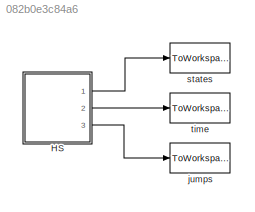
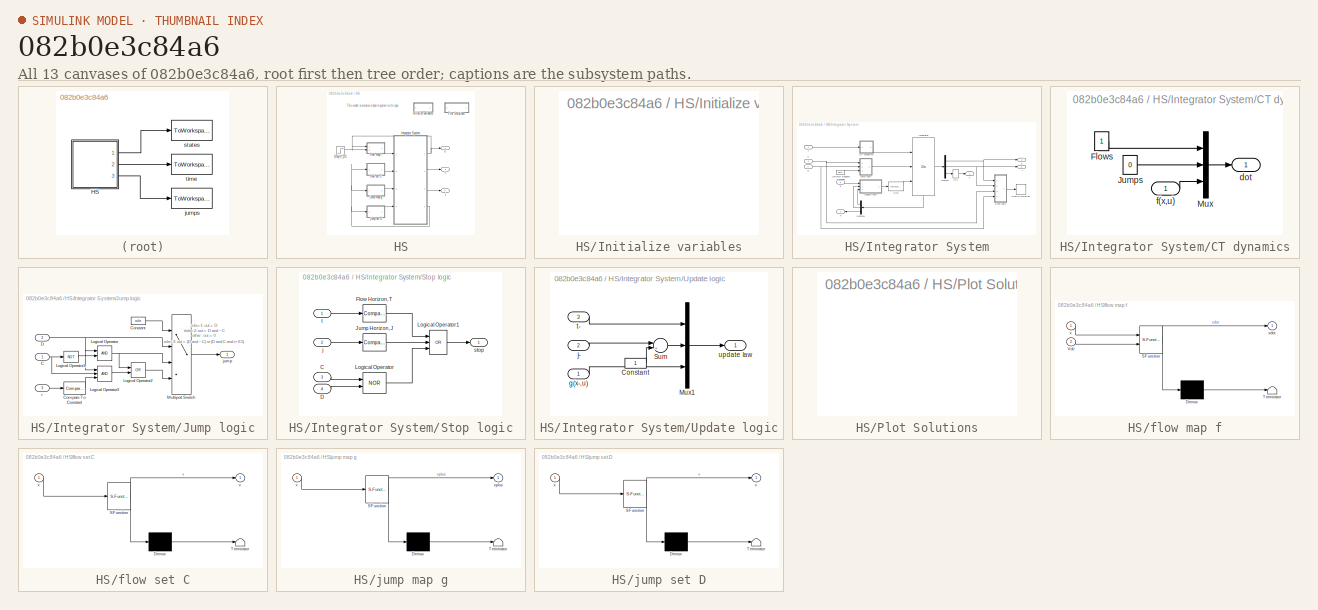
[diagram: thumbnail index - all 13 canvases of the model, root first then tree order]
MODEL slx_082b0e3c84a6
KIND model
BLOCK [SubSystem] HS
  CopyFcn = set_param(gcb,'LinkStatus','none'),                                      \nset_param(gcs, 'MaxStep', 'MaxStep', 'RelTol', 'RelTol','Stop time', 'T')
  FunctionWithSeparateData = off
  LoadFcn = set_param(gcb,'LinkStatus','none')
  MaskHideContents = off
  MinAlgLoopOccurrences = off
  Opaque = off
  Ports = [0, 3]
  PropExecContextOutsideSubsystem = off
  RTWSystemCode = Auto
  RequestExecContextInheritance = off
BLOCK [SubSystem] HS/Initialize variables
  FunctionWithSeparateData = off
  MaskHideContents = off
  MinAlgLoopOccurrences = off
  Opaque = off
  OpenFcn = try                                                            \n     clearvars -except inifile pathfile_in pathfile_pos posfile\n     cd(pathfile_in);                                          \n     eval(inifile);                                            \ncatch                                                          \n     [inifile,pathfile_in] = getInitializationfile;            \n     cd(pathfile...<+179ch>
  Ports = []
  Priority = -10
  PropExecContextOutsideSubsystem = off
  RTWSystemCode = Auto
  RequestExecContextInheritance = off
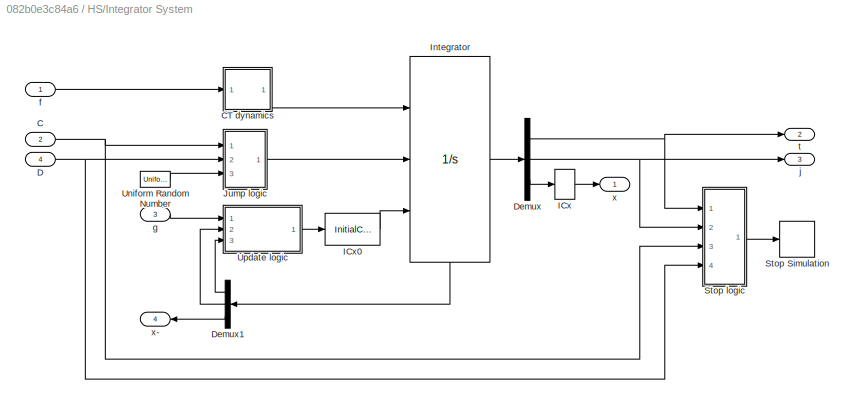
BLOCK [SubSystem] HS/Integrator System
  FunctionWithSeparateData = off
  MaskHideContents = off
  MinAlgLoopOccurrences = off
  Opaque = off
  Ports = [4, 4]
  Priority = 2
  PropExecContextOutsideSubsystem = off
  RTWSystemCode = Auto
  RequestExecContextInheritance = off
BLOCK [Inport] HS/Integrator System/C
  IconDisplay = Port number
  Port = 2
BLOCK [SubSystem] HS/Integrator System/CT dynamics
  FunctionWithSeparateData = off
  MaskHideContents = off
  MinAlgLoopOccurrences = off
  Opaque = off
  Ports = [1, 1]
  PropExecContextOutsideSubsystem = off
  RTWSystemCode = Auto
  RequestExecContextInheritance = off
BLOCK [Constant] HS/Integrator System/CT dynamics/Flows
BLOCK [Constant] HS/Integrator System/CT dynamics/Jumps
  Value = 0
BLOCK [Mux] HS/Integrator System/CT dynamics/Mux
  DisplayOption = bar
  Inputs = [1 1 -1]
  Ports = [3, 1]
BLOCK [Outport] HS/Integrator System/CT dynamics/dot
  IconDisplay = Port number
BLOCK [Inport] HS/Integrator System/CT dynamics/f(x,u)
  IconDisplay = Port number
BLOCK [Inport] HS/Integrator System/D
  IconDisplay = Port number
  Port = 4
BLOCK [Demux] HS/Integrator System/Demux
  DisplayOption = bar
  Outputs = [1 1 -1]
  Ports = [1, 3]
BLOCK [Demux] HS/Integrator System/Demux1
  DisplayOption = bar
  Outputs = [1 1 -1]
  Ports = [1, 3]
BLOCK [InitialCondition] HS/Integrator System/ICx
  Value = x0
BLOCK [InitialCondition] HS/Integrator System/ICx0
  Value = [0; 0; x0(:)]
BLOCK [Integrator] HS/Integrator System/Integrator
  ExternalReset = level hold
  InitialConditionSource = external
  Ports = [3, 1, 0, 0, 1]
  ShowStatePort = on
  ZeroCross = off
BLOCK [SubSystem] HS/Integrator System/Jump logic
  FunctionWithSeparateData = off
  MaskHideContents = off
  MinAlgLoopOccurrences = off
  Opaque = off
  Ports = [3, 1]
  PropExecContextOutsideSubsystem = off
  RTWSystemCode = Auto
  RequestExecContextInheritance = off
BLOCK [Inport] HS/Integrator System/Jump logic/C
  IconDisplay = Port number
BLOCK [Reference] HS/Integrator System/Jump logic/Compare To Constant  REF=simulink/Logic and Bit
Operations/Compare
To Constant
  OutDataTypeStr = uint8
  Ports = [1, 1]
  SourceBlock = simulink/Logic and Bit\nOperations/Compare\nTo Constant
  SourceType = Compare To Constant
  ZeroCross = on
  const = 0.5
  relop = >=
BLOCK [Constant] HS/Integrator System/Jump logic/Constant
  Value = rule
BLOCK [Inport] HS/Integrator System/Jump logic/D
  IconDisplay = Port number
  Port = 2
BLOCK [Logic] HS/Integrator System/Jump logic/Logical Operator
  AllPortsSameDT = off
  OutDataTypeStr = boolean
  Ports = [2, 1]
BLOCK [Logic] HS/Integrator System/Jump logic/Logical Operator1
  AllPortsSameDT = off
  Inputs = 1
  Operator = NOT
  OutDataTypeStr = boolean
  Ports = [1, 1]
BLOCK [Logic] HS/Integrator System/Jump logic/Logical Operator2
  AllPortsSameDT = off
  Operator = OR
  OutDataTypeStr = boolean
  Ports = [2, 1]
BLOCK [Logic] HS/Integrator System/Jump logic/Logical Operator3
  AllPortsSameDT = off
  Inputs = 3
  OutDataTypeStr = boolean
  Ports = [3, 1]
BLOCK [MultiPortSwitch] HS/Integrator System/Jump logic/Multiport Switch
  InputSameDT = off
  Ports = [4, 1]
  SaturateOnIntegerOverflow = off
BLOCK [Outport] HS/Integrator System/Jump logic/jump
  IconDisplay = Port number
BLOCK [Inport] HS/Integrator System/Jump logic/r
  IconDisplay = Port number
  Port = 3
BLOCK [Stop] HS/Integrator System/Stop Simulation
BLOCK [SubSystem] HS/Integrator System/Stop logic
  FunctionWithSeparateData = off
  MaskHideContents = off
  MinAlgLoopOccurrences = off
  Opaque = off
  Ports = [4, 1]
  PropExecContextOutsideSubsystem = off
  RTWSystemCode = Auto
  RequestExecContextInheritance = off
BLOCK [Inport] HS/Integrator System/Stop logic/C
  IconDisplay = Port number
  Port = 3
BLOCK [Inport] HS/Integrator System/Stop logic/D
  IconDisplay = Port number
  Port = 4
BLOCK [Reference] HS/Integrator System/Stop logic/Flow Horizon, T  REF=simulink/Logic and Bit
Operations/Compare
To Constant
  OutDataTypeStr = uint8
  Ports = [1, 1]
  SourceBlock = simulink/Logic and Bit\nOperations/Compare\nTo Constant
  SourceType = Compare To Constant
  ZeroCross = off
  const = T
  relop = >=
BLOCK [Reference] HS/Integrator System/Stop logic/Jump Horizon, J  REF=simulink/Logic and Bit
Operations/Compare
To Constant
  OutDataTypeStr = uint8
  Ports = [1, 1]
  SourceBlock = simulink/Logic and Bit\nOperations/Compare\nTo Constant
  SourceType = Compare To Constant
  ZeroCross = off
  const = J
  relop = >=
BLOCK [Logic] HS/Integrator System/Stop logic/Logical Operator
  AllPortsSameDT = off
  Operator = NOR
  OutDataTypeStr = boolean
  Ports = [2, 1]
BLOCK [Logic] HS/Integrator System/Stop logic/Logical Operator1
  AllPortsSameDT = off
  Inputs = 3
  Operator = OR
  OutDataTypeStr = boolean
  Ports = [3, 1]
BLOCK [Inport] HS/Integrator System/Stop logic/j
  IconDisplay = Port number
  Port = 2
BLOCK [Outport] HS/Integrator System/Stop logic/stop
  IconDisplay = Port number
BLOCK [Inport] HS/Integrator System/Stop logic/t
  IconDisplay = Port number
BLOCK [UniformRandomNumber] HS/Integrator System/Uniform Random Number
  Minimum = 0
  SampleTime = 0
  Seed = abs(floor(100*rand))
BLOCK [SubSystem] HS/Integrator System/Update logic
  FunctionWithSeparateData = off
  MaskHideContents = off
  MinAlgLoopOccurrences = off
  Opaque = off
  Ports = [3, 1]
  PropExecContextOutsideSubsystem = off
  RTWSystemCode = Auto
  RequestExecContextInheritance = off
BLOCK [Constant] HS/Integrator System/Update logic/Constant
BLOCK [Mux] HS/Integrator System/Update logic/Mux1
  DisplayOption = bar
  Inputs = [1 1 -1]
  Ports = [3, 1]
BLOCK [Sum] HS/Integrator System/Update logic/Sum
  IconShape = round
  InputSameDT = off
  Inputs = |++
  OutDataTypeStr = Inherit: Inherit via internal rule
  Ports = [2, 1]
  SaturateOnIntegerOverflow = off
BLOCK [Inport] HS/Integrator System/Update logic/g(x-,u)
  IconDisplay = Port number
BLOCK [Inport] HS/Integrator System/Update logic/j-
  IconDisplay = Port number
  Port = 2
BLOCK [Inport] HS/Integrator System/Update logic/t-
  IconDisplay = Port number
  Port = 3
BLOCK [Outport] HS/Integrator System/Update logic/update law
  IconDisplay = Port number
BLOCK [Inport] HS/Integrator System/f
  IconDisplay = Port number
BLOCK [Inport] HS/Integrator System/g
  IconDisplay = Port number
  Port = 3
BLOCK [Outport] HS/Integrator System/j
  IconDisplay = Port number
  Port = 3
BLOCK [Outport] HS/Integrator System/t
  IconDisplay = Port number
  Port = 2
BLOCK [Outport] HS/Integrator System/x
  IconDisplay = Port number
BLOCK [Outport] HS/Integrator System/x-
  IconDisplay = Port number
  Port = 4
BLOCK [SubSystem] HS/Plot Solutions
  FunctionWithSeparateData = off
  MaskHideContents = off
  MinAlgLoopOccurrences = off
  Opaque = off
  OpenFcn = try                                                 \n     cd(pathfile_pos);                              \n     eval(posfile);                                 \ncatch                                               \n     [posfile,pathfile_pos] = getInitializationfile;\n     cd(pathfile_pos);                              \n     posfile = strrep(posfile,'.m','');             \n     eval(posfile);          ...<+27ch>
  Ports = []
  PropExecContextOutsideSubsystem = off
  RTWSystemCode = Auto
  RequestExecContextInheritance = off
BLOCK [Step] HS/Step V_DC
  After = 7
  Before = 5
  SampleTime = 0
  Time = 3
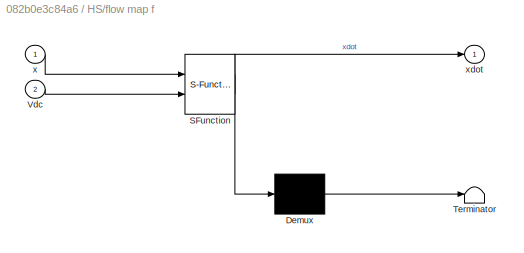
BLOCK [SubSystem] HS/flow map f
  ErrorFcn = Stateflow.Translate.translate
  FunctionWithSeparateData = off
  MaskHideContents = off
  MinAlgLoopOccurrences = off
  Opaque = off
  PermitHierarchicalResolution = ExplicitOnly
  Ports = [2, 1]
  PropExecContextOutsideSubsystem = off
  RTWSystemCode = Auto
  RequestExecContextInheritance = off
  SFBlockType = MATLAB Function
  TreatAsAtomicUnit = on
BLOCK [Demux] HS/flow map f/ Demux 
  Outputs = 1
  Ports = [1, 1]
BLOCK [S-Function] HS/flow map f/ SFunction 
  EnableBusSupport = on
  FunctionName = sf_sfun
  Parameters = Cap,L,R
  PortCounts = [2 2]
  Ports = [2, 2]
  Tag = Stateflow S-Function inverter_with_changing_VDC 9
BLOCK [Terminator] HS/flow map f/ Terminator 
BLOCK [Inport] HS/flow map f/Vdc
  IconDisplay = Port number
  Port = 2
BLOCK [Inport] HS/flow map f/x
  IconDisplay = Port number
BLOCK [Outport] HS/flow map f/xdot
  IconDisplay = Port number
BLOCK [SubSystem] HS/flow set C
  ErrorFcn = Stateflow.Translate.translate
  FunctionWithSeparateData = off
  MaskHideContents = off
  MinAlgLoopOccurrences = off
  Opaque = off
  PermitHierarchicalResolution = ExplicitOnly
  Ports = [1, 1]
  PropExecContextOutsideSubsystem = off
  RTWSystemCode = Auto
  RequestExecContextInheritance = off
  SFBlockType = MATLAB Function
  TreatAsAtomicUnit = on
BLOCK [Demux] HS/flow set C/ Demux 
  Outputs = 1
  Ports = [1, 1]
BLOCK [S-Function] HS/flow set C/ SFunction 
  EnableBusSupport = on
  FunctionName = sf_sfun
  Parameters = a,b,c3,ci,co,e1
  PortCounts = [1 2]
  Ports = [1, 2]
  Tag = Stateflow S-Function inverter_with_changing_VDC 10
BLOCK [Terminator] HS/flow set C/ Terminator 
BLOCK [Outport] HS/flow set C/v
  IconDisplay = Port number
BLOCK [Inport] HS/flow set C/x
  IconDisplay = Port number
BLOCK [Outport] HS/j
  IconDisplay = Port number
  Port = 3
BLOCK [SubSystem] HS/jump map g
  ErrorFcn = Stateflow.Translate.translate
  FunctionWithSeparateData = off
  MaskHideContents = off
  MinAlgLoopOccurrences = off
  Opaque = off
  PermitHierarchicalResolution = ExplicitOnly
  Ports = [1, 1]
  Priority = 2
  PropExecContextOutsideSubsystem = off
  RTWSystemCode = Auto
  RequestExecContextInheritance = off
  SFBlockType = MATLAB Function
  TreatAsAtomicUnit = on
BLOCK [Demux] HS/jump map g/ Demux 
  Outputs = 1
  Ports = [1, 1]
BLOCK [S-Function] HS/jump map g/ SFunction 
  EnableBusSupport = on
  FunctionName = sf_sfun
  Parameters = a,b,c3,ci,co,e1
  PortCounts = [1 2]
  Ports = [1, 2]
  Tag = Stateflow S-Function inverter_with_changing_VDC 11
BLOCK [Terminator] HS/jump map g/ Terminator 
BLOCK [Inport] HS/jump map g/x
  IconDisplay = Port number
BLOCK [Outport] HS/jump map g/xplus
  IconDisplay = Port number
BLOCK [SubSystem] HS/jump set D
  ErrorFcn = Stateflow.Translate.translate
  FunctionWithSeparateData = off
  MaskHideContents = off
  MinAlgLoopOccurrences = off
  Opaque = off
  PermitHierarchicalResolution = ExplicitOnly
  Ports = [1, 1]
  PropExecContextOutsideSubsystem = off
  RTWSystemCode = Auto
  RequestExecContextInheritance = off
  SFBlockType = MATLAB Function
  TreatAsAtomicUnit = on
BLOCK [Demux] HS/jump set D/ Demux 
  Outputs = 1
  Ports = [1, 1]
BLOCK [S-Function] HS/jump set D/ SFunction 
  EnableBusSupport = on
  FunctionName = sf_sfun
  Parameters = a,b,c3,ci,co
  PortCounts = [1 2]
  Ports = [1, 2]
  Tag = Stateflow S-Function inverter_with_changing_VDC 12
BLOCK [Terminator] HS/jump set D/ Terminator 
BLOCK [Outport] HS/jump set D/v
  IconDisplay = Port number
BLOCK [Inport] HS/jump set D/x
  IconDisplay = Port number
BLOCK [Outport] HS/t
  IconDisplay = Port number
  Port = 2
BLOCK [Outport] HS/x
  IconDisplay = Port number
BLOCK [ToWorkspace] jumps
  MaxDataPoints = inf
  Ports = [1]
  SampleTime = -1
  VariableName = j
BLOCK [ToWorkspace] states
  MaxDataPoints = inf
  Ports = [1]
  SampleTime = -1
  VariableName = x
BLOCK [ToWorkspace] time
  MaxDataPoints = inf
  Ports = [1]
  SampleTime = -1
  VariableName = t
ANNOTATION HS: This model simulates a hybrid system with input
ANNOTATION HS/Integrator System/Jump logic: rule=1: out = D rlule=2: out = D and ~C rule=3: out = (D and ~C) or (D and C and r>0.5) other : out = 0
NET HS/Integrator System/C:1 -> HS/Integrator System/Jump logic:1, HS/Integrator System/Stop logic:3
LINE HS/Integrator System/CT dynamics/Flows:1 -> HS/Integrator System/CT dynamics/Mux:1
LINE HS/Integrator System/CT dynamics/Jumps:1 -> HS/Integrator System/CT dynamics/Mux:2
LINE HS/Integrator System/CT dynamics/Mux:1 -> HS/Integrator System/CT dynamics/dot:1
LINE HS/Integrator System/CT dynamics/f(x,u):1 -> HS/Integrator System/CT dynamics/Mux:3
LINE HS/Integrator System/CT dynamics:1 -> HS/Integrator System/Integrator:1
NET HS/Integrator System/D:1 -> HS/Integrator System/Jump logic:2, HS/Integrator System/Stop logic:4
LINE HS/Integrator System/Demux1:1 -> HS/Integrator System/Update logic:3
LINE HS/Integrator System/Demux1:2 -> HS/Integrator System/Update logic:2
LINE HS/Integrator System/Demux1:3 -> HS/Integrator System/x-:1
NET HS/Integrator System/Demux:1 -> HS/Integrator System/Stop logic:1, HS/Integrator System/t:1
NET HS/Integrator System/Demux:2 -> HS/Integrator System/Stop logic:2, HS/Integrator System/j:1
LINE HS/Integrator System/Demux:3 -> HS/Integrator System/ICx:1
LINE HS/Integrator System/ICx0:1 -> HS/Integrator System/Integrator:3
LINE HS/Integrator System/ICx:1 -> HS/Integrator System/x:1
LINE HS/Integrator System/Integrator:1 -> HS/Integrator System/Demux:1
LINE HS/Integrator System/Integrator:state -> HS/Integrator System/Demux1:1
NET HS/Integrator System/Jump logic/C:1 -> HS/Integrator System/Jump logic/Logical Operator1:1, HS/Integrator System/Jump logic/Logical Operator3:2
LINE HS/Integrator System/Jump logic/Compare To Constant:1 -> HS/Integrator System/Jump logic/Logical Operator3:3
LINE HS/Integrator System/Jump logic/Constant:1 -> HS/Integrator System/Jump logic/Multiport Switch:1
NET HS/Integrator System/Jump logic/D:1 -> HS/Integrator System/Jump logic/Logical Operator3:1, HS/Integrator System/Jump logic/Logical Operator:1, HS/Integrator System/Jump logic/Multiport Switch:2
LINE HS/Integrator System/Jump logic/Logical Operator1:1 -> HS/Integrator System/Jump logic/Logical Operator:2
LINE HS/Integrator System/Jump logic/Logical Operator2:1 -> HS/Integrator System/Jump logic/Multiport Switch:4
LINE HS/Integrator System/Jump logic/Logical Operator3:1 -> HS/Integrator System/Jump logic/Logical Operator2:2
NET HS/Integrator System/Jump logic/Logical Operator:1 -> HS/Integrator System/Jump logic/Logical Operator2:1, HS/Integrator System/Jump logic/Multiport Switch:3
LINE HS/Integrator System/Jump logic/Multiport Switch:1 -> HS/Integrator System/Jump logic/jump:1
LINE HS/Integrator System/Jump logic/r:1 -> HS/Integrator System/Jump logic/Compare To Constant:1
LINE HS/Integrator System/Jump logic:1 -> HS/Integrator System/Integrator:2
LINE HS/Integrator System/Stop logic/C:1 -> HS/Integrator System/Stop logic/Logical Operator:1
LINE HS/Integrator System/Stop logic/D:1 -> HS/Integrator System/Stop logic/Logical Operator:2
LINE HS/Integrator System/Stop logic/Flow Horizon, T:1 -> HS/Integrator System/Stop logic/Logical Operator1:1
LINE HS/Integrator System/Stop logic/Jump Horizon, J:1 -> HS/Integrator System/Stop logic/Logical Operator1:2
LINE HS/Integrator System/Stop logic/Logical Operator1:1 -> HS/Integrator System/Stop logic/stop:1
LINE HS/Integrator System/Stop logic/Logical Operator:1 -> HS/Integrator System/Stop logic/Logical Operator1:3
LINE HS/Integrator System/Stop logic/j:1 -> HS/Integrator System/Stop logic/Jump Horizon, J:1
LINE HS/Integrator System/Stop logic/t:1 -> HS/Integrator System/Stop logic/Flow Horizon, T:1
LINE HS/Integrator System/Stop logic:1 -> HS/Integrator System/Stop Simulation:1
LINE HS/Integrator System/Uniform Random Number:1 -> HS/Integrator System/Jump logic:3
LINE HS/Integrator System/Update logic/Constant:1 -> HS/Integrator System/Update logic/Sum:2
LINE HS/Integrator System/Update logic/Mux1:1 -> HS/Integrator System/Update logic/update law:1
LINE HS/Integrator System/Update logic/Sum:1 -> HS/Integrator System/Update logic/Mux1:2
LINE HS/Integrator System/Update logic/g(x-,u):1 -> HS/Integrator System/Update logic/Mux1:3
LINE HS/Integrator System/Update logic/j-:1 -> HS/Integrator System/Update logic/Sum:1
LINE HS/Integrator System/Update logic/t-:1 -> HS/Integrator System/Update logic/Mux1:1
LINE HS/Integrator System/Update logic:1 -> HS/Integrator System/ICx0:1
LINE HS/Integrator System/f:1 -> HS/Integrator System/CT dynamics:1
LINE HS/Integrator System/g:1 -> HS/Integrator System/Update logic:1
NET HS/Integrator System:1 -> HS/flow map f:1, HS/x:1
LINE HS/Integrator System:2 -> HS/t:1
LINE HS/Integrator System:3 -> HS/j:1
NET HS/Integrator System:4 -> HS/flow set C:1, HS/jump map g:1, HS/jump set D:1
LINE HS/Step V_DC:1 -> HS/flow map f:2
LINE HS/flow map f:1 -> HS/Integrator System:1
LINE HS/flow set C:1 -> HS/Integrator System:2
LINE HS/jump map g:1 -> HS/Integrator System:3
LINE HS/jump set D:1 -> HS/Integrator System:4
LINE HS:1 -> states:1
LINE HS:2 -> time:1
LINE HS:3 -> jumps:1
note: NET lines group one-source signal fan-out (src -> all destinations, sorted); 1:1 wires keep LINE
